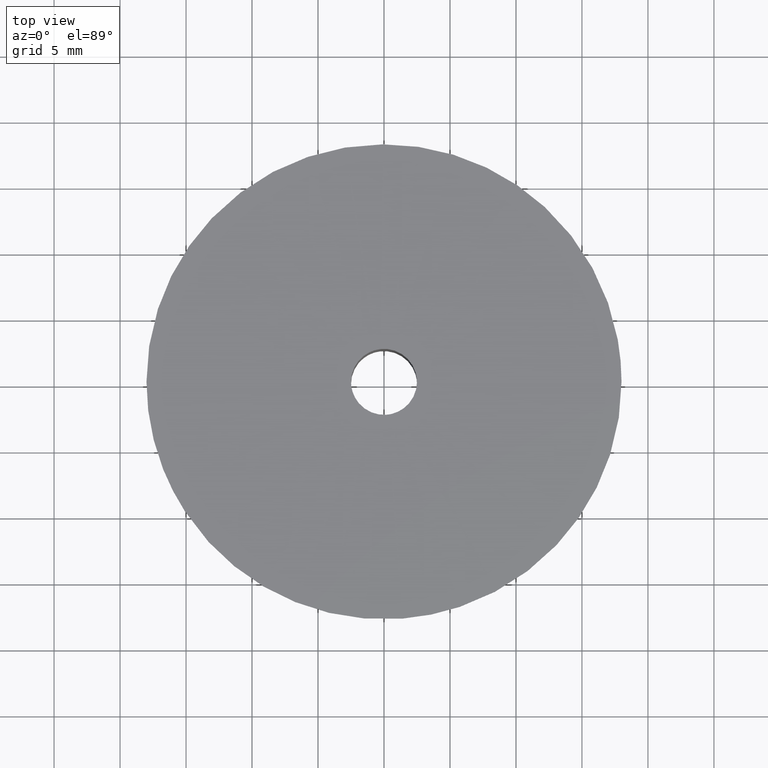
[diagram: clean part render]
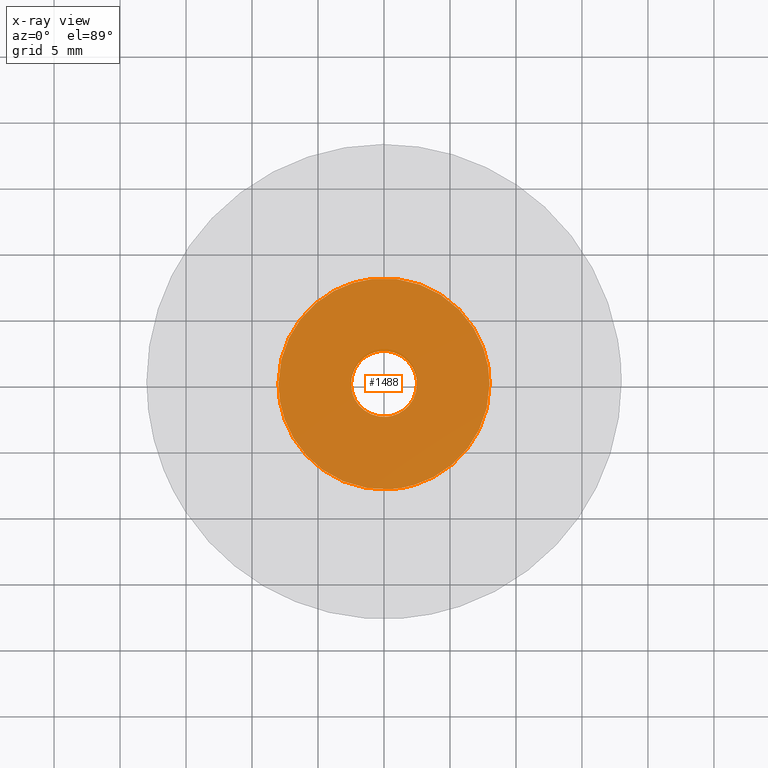
[diagram: x-ray — body ghosted, one internal face saturated and labeled with its STEP entity id]
A machine part, top view, then the same camera in x-ray: the body is ghosted and one INTERNAL B-rep face — a face not visible from any outside direction — is saturated and labeled: STEP entity #1488.
In plain terms, the highlighted face is a freeform B-spline surface patch.
Its self-contained STEP definition (entity closure, byte-faithful):
#754=CARTESIAN_POINT('',(-0.295084871198916,2.482523900950200,12.799999999999800));
#755=VERTEX_POINT('',#754);
#761=CARTESIAN_POINT('',(2.500000000000000,0.0,12.799999999999800));
#762=VERTEX_POINT('',#761);
#763=CARTESIAN_POINT('',(-0.295084871198916,2.482523900950200,12.799999999999805));
#764=CARTESIAN_POINT('',(-0.148059576123260,2.500000000000001,12.799999999999798));
#765=CARTESIAN_POINT('',(0.0,2.500000000000000,12.799999999999800));
#766=CARTESIAN_POINT('',(2.500000000000000,2.500000000000000,12.799999999999798));
#767=CARTESIAN_POINT('',(2.500000000000000,0.0,12.799999999999800));
#775=(BOUNDED_CURVE()B_SPLINE_CURVE(2,(#763,#764,#765,#766,#767),.UNSPECIFIED.,.F.,.U.)B_SPLINE_CURVE_WITH_KNOTS((3,2,3),(0.229562570926349,0.250000000000000,0.500000000000000),.UNSPECIFIED.)CURVE()GEOMETRIC_REPRESENTATION_ITEM()RATIONAL_B_SPLINE_CURVE((0.956026945116942,0.976056062457387,1.0,0.707106781186548,1.0))REPRESENTATION_ITEM(''));
#776=EDGE_CURVE('',#755,#762,#775,.T.);
#778=CARTESIAN_POINT('',(0.152621348864321,-2.495336996053005,12.799999999999800));
#779=VERTEX_POINT('',#778);
#780=CARTESIAN_POINT('',(2.500000000000000,0.0,12.799999999999800));
#781=CARTESIAN_POINT('',(2.500000000000000,-2.351765167212919,12.799999999999798));
#782=CARTESIAN_POINT('',(0.152621348864322,-2.495336996053004,12.799999999999802));
#790=(BOUNDED_CURVE()B_SPLINE_CURVE(2,(#780,#781,#782),.UNSPECIFIED.,.F.,.U.)B_SPLINE_CURVE_WITH_KNOTS((3,3),(0.500000000000000,0.739332962238210),.UNSPECIFIED.)CURVE()GEOMETRIC_REPRESENTATION_ITEM()RATIONAL_B_SPLINE_CURVE((1.0,0.719603993287569,0.976072041665147))REPRESENTATION_ITEM(''));
#791=EDGE_CURVE('',#762,#779,#790,.T.);
#865=CARTESIAN_POINT('',(-2.500000000000000,0.0,12.799999999999800));
#866=VERTEX_POINT('',#865);
#867=CARTESIAN_POINT('',(0.152621348864321,-2.495336996053005,12.799999999999805));
#868=CARTESIAN_POINT('',(0.076381908273728,-2.500000000000000,12.799999999999798));
#869=CARTESIAN_POINT('',(0.0,-2.500000000000000,12.799999999999800));
#870=CARTESIAN_POINT('',(-2.500000000000000,-2.500000000000000,12.799999999999798));
#871=CARTESIAN_POINT('',(-2.500000000000000,0.0,12.799999999999800));
#879=(BOUNDED_CURVE()B_SPLINE_CURVE(2,(#867,#868,#869,#870,#871),.UNSPECIFIED.,.F.,.U.)B_SPLINE_CURVE_WITH_KNOTS((3,2,3),(0.739332962238210,0.750000000000000,1.0),.UNSPECIFIED.)CURVE()GEOMETRIC_REPRESENTATION_ITEM()RATIONAL_B_SPLINE_CURVE((0.976072041665146,0.987502787898978,1.0,0.707106781186548,1.0))REPRESENTATION_ITEM(''));
#880=EDGE_CURVE('',#779,#866,#879,.T.);
#882=CARTESIAN_POINT('',(-2.500000000000000,0.0,12.799999999999800));
#883=CARTESIAN_POINT('',(-2.500000000000000,2.220437603711284,12.799999999999798));
#884=CARTESIAN_POINT('',(-0.295084871198916,2.482523900950199,12.799999999999802));
#892=(BOUNDED_CURVE()B_SPLINE_CURVE(2,(#882,#883,#884),.UNSPECIFIED.,.F.,.U.)B_SPLINE_CURVE_WITH_KNOTS((3,3),(0.0,0.229562570926349),.UNSPECIFIED.)CURVE()GEOMETRIC_REPRESENTATION_ITEM()RATIONAL_B_SPLINE_CURVE((1.0,0.731050718729161,0.956026945116942))REPRESENTATION_ITEM(''));
#893=EDGE_CURVE('',#866,#755,#892,.T.);
#925=CARTESIAN_POINT('',(-0.944264130173175,7.944077369485516,12.799999999999139));
#926=VERTEX_POINT('',#925);
#927=CARTESIAN_POINT('',(8.0,0.0,12.799999999999800));
#928=VERTEX_POINT('',#927);
#929=CARTESIAN_POINT('',(-0.944264130173175,7.944077369485516,12.799999999999139));
#930=CARTESIAN_POINT('',(-0.473788032153284,8.0,12.799999999999795));
#931=CARTESIAN_POINT('',(0.0,8.0,12.799999999999800));
#932=CARTESIAN_POINT('',(8.0,8.0,12.799999999999798));
#933=CARTESIAN_POINT('',(8.0,0.0,12.799999999999800));
#941=(BOUNDED_CURVE()B_SPLINE_CURVE(2,(#929,#930,#931,#932,#933),.UNSPECIFIED.,.F.,.U.)B_SPLINE_CURVE_WITH_KNOTS((3,2,3),(0.229562680876251,0.250000000000000,0.500000000000000),.UNSPECIFIED.)CURVE()GEOMETRIC_REPRESENTATION_ITEM()RATIONAL_B_SPLINE_CURVE((0.956027160623564,0.976056191271709,1.0,0.707106781186548,1.0))REPRESENTATION_ITEM(''));
#942=EDGE_CURVE('',#926,#928,#941,.T.);
#983=CARTESIAN_POINT('',(0.488375278896955,-7.985079184754006,12.799999999999550));
#984=VERTEX_POINT('',#983);
#990=CARTESIAN_POINT('',(8.0,0.0,12.799999999999800));
#991=CARTESIAN_POINT('',(8.000000000000002,-7.525660845477304,12.799999999999798));
#992=CARTESIAN_POINT('',(0.488375278896955,-7.985079184754006,12.799999999999553));
#1000=(BOUNDED_CURVE()B_SPLINE_CURVE(2,(#990,#991,#992),.UNSPECIFIED.,.F.,.U.)B_SPLINE_CURVE_WITH_KNOTS((3,3),(0.500000000000000,0.739333243962292),.UNSPECIFIED.)CURVE()GEOMETRIC_REPRESENTATION_ITEM()RATIONAL_B_SPLINE_CURVE((1.0,0.719603663227276,0.976072645454226))REPRESENTATION_ITEM(''));
#1001=EDGE_CURVE('',#928,#984,#1000,.T.);
#1024=CARTESIAN_POINT('',(-8.0,0.0,12.799999999999800));
#1025=VERTEX_POINT('',#1024);
#1026=CARTESIAN_POINT('',(-8.0,0.0,12.799999999999800));
#1027=CARTESIAN_POINT('',(-8.0,7.105404987039046,12.799999999999800));
#1028=CARTESIAN_POINT('',(-0.944264130173175,7.944077369485516,12.799999999999139));
#1036=(BOUNDED_CURVE()B_SPLINE_CURVE(2,(#1026,#1027,#1028),.UNSPECIFIED.,.F.,.U.)B_SPLINE_CURVE_WITH_KNOTS((3,3),(0.0,0.229562680876251),.UNSPECIFIED.)CURVE()GEOMETRIC_REPRESENTATION_ITEM()RATIONAL_B_SPLINE_CURVE((1.0,0.731050589914838,0.956027160623564))REPRESENTATION_ITEM(''));
#1037=EDGE_CURVE('',#1025,#926,#1036,.T.);
#1039=CARTESIAN_POINT('',(0.488375278896955,-7.985079184754006,12.799999999999553));
#1040=CARTESIAN_POINT('',(0.244415569420801,-8.0,12.799999999999805));
#1041=CARTESIAN_POINT('',(0.0,-8.0,12.799999999999800));
#1042=CARTESIAN_POINT('',(-8.0,-8.0,12.799999999999798));
#1043=CARTESIAN_POINT('',(-8.0,0.0,12.799999999999800));
#1051=(BOUNDED_CURVE()B_SPLINE_CURVE(2,(#1039,#1040,#1041,#1042,#1043),.UNSPECIFIED.,.F.,.U.)B_SPLINE_CURVE_WITH_KNOTS((3,2,3),(0.739333243962292,0.750000000000000,1.0),.UNSPECIFIED.)CURVE()GEOMETRIC_REPRESENTATION_ITEM()RATIONAL_B_SPLINE_CURVE((0.976072645454226,0.987503117959271,1.0,0.707106781186548,1.0))REPRESENTATION_ITEM(''));
#1052=EDGE_CURVE('',#984,#1025,#1051,.T.);
#1471=CARTESIAN_POINT('',(-8.799199968988896,-8.799005706689336,12.799999999999800));
#1472=CARTESIAN_POINT('',(8.799200398142338,-8.799005706689336,12.799999999999800));
#1473=CARTESIAN_POINT('',(-8.799199968988896,8.799054487130622,12.799999999999800));
#1474=CARTESIAN_POINT('',(8.799200398142338,8.799054487130622,12.799999999999800));
#1475=B_SPLINE_SURFACE_WITH_KNOTS('',1,1,((#1471,#1473),(#1472,#1474)),.UNSPECIFIED.,.F.,.F.,.U.,(2,2),(2,2),(0.0,17.598400367131230),(0.0,17.598060193819961),.UNSPECIFIED.);
#1476=ORIENTED_EDGE('',*,*,#1037,.T.);
#1477=ORIENTED_EDGE('',*,*,#942,.T.);
#1478=ORIENTED_EDGE('',*,*,#1001,.T.);
#1479=ORIENTED_EDGE('',*,*,#1052,.T.);
#1480=EDGE_LOOP('',(#1476,#1477,#1478,#1479));
#1481=FACE_OUTER_BOUND('',#1480,.T.);
#1482=ORIENTED_EDGE('',*,*,#791,.F.);
#1483=ORIENTED_EDGE('',*,*,#776,.F.);
#1484=ORIENTED_EDGE('',*,*,#893,.F.);
#1485=ORIENTED_EDGE('',*,*,#880,.F.);
#1486=EDGE_LOOP('',(#1482,#1483,#1484,#1485));
#1487=FACE_BOUND('',#1486,.T.);
#1488=ADVANCED_FACE('',(#1481,#1487),#1475,.F.);